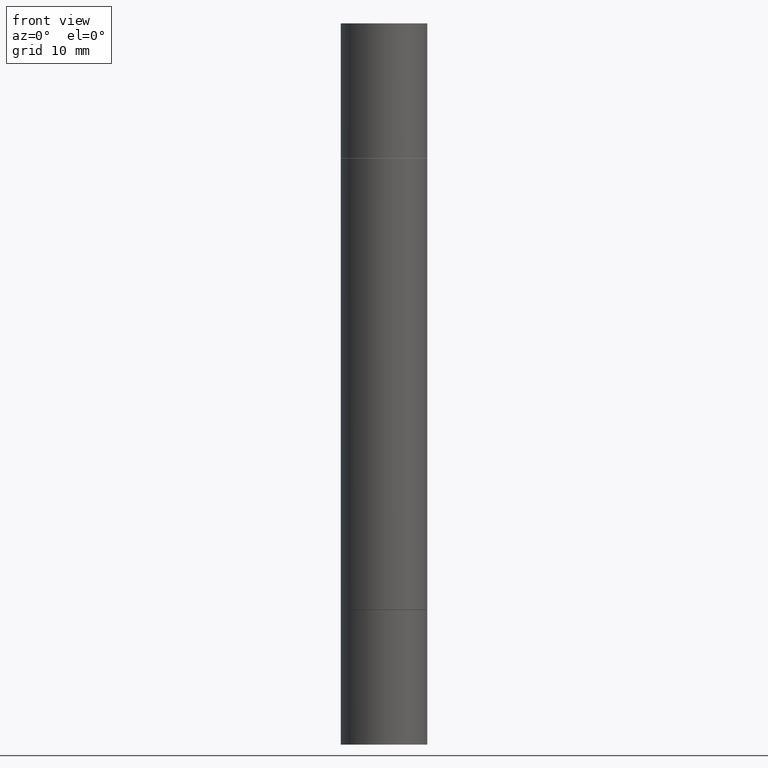
[diagram: clean part render]
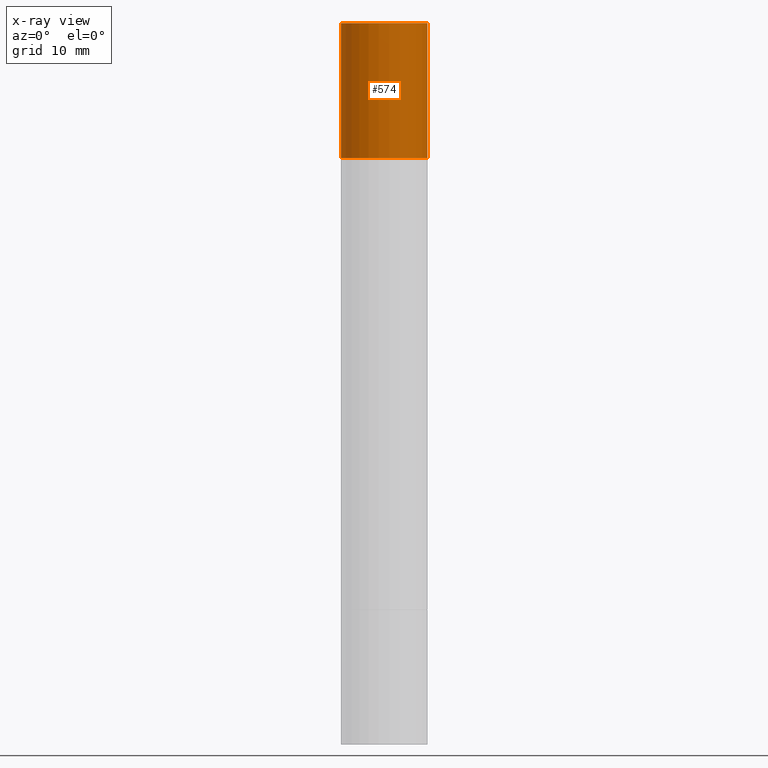
[diagram: x-ray — body ghosted, one internal face saturated and labeled with its STEP entity id]
A machine part, front view, then the same camera in x-ray: the body is ghosted and one INTERNAL B-rep face — a face not visible from any outside direction — is saturated and labeled: STEP entity #574.
In plain terms, the highlighted cylindrical surface (partial cylindrical patch) has radius 4.4996 mm, axis along (-0, -0, -1).
Its self-contained STEP definition (entity closure, byte-faithful):
#11 = CARTESIAN_POINT ( 'NONE',  ( -0.1771500000000000019, -9.096389231977797770E-15, -2.952799999999998981 ) ) ;
#21 = LINE ( 'NONE', #657, #92 ) ;
#38 = VERTEX_POINT ( 'NONE', #596 ) ;
#41 = EDGE_CURVE ( 'NONE', #407, #420, #21, .T. ) ;
#57 = DIRECTION ( 'NONE',  ( -2.445468806185136877E-29, -3.492890411551753071E-15, -1.000000000000000000 ) ) ;
#64 = AXIS2_PLACEMENT_3D ( 'NONE', #666, #186, #244 ) ;
#72 = DIRECTION ( 'NONE',  ( 2.445468806185136597E-29, 3.492890411551752677E-15, 1.000000000000000000 ) ) ;
#75 = VECTOR ( 'NONE', #57, 39.37007874015748143 ) ;
#92 = VECTOR ( 'NONE', #488, 39.37007874015748143 ) ;
#94 = AXIS2_PLACEMENT_3D ( 'NONE', #176, #72, #384 ) ;
#107 = LINE ( 'NONE', #11, #75 ) ;
#138 = CIRCLE ( 'NONE', #64, 0.1771500000000000019 ) ;
#150 = ORIENTED_EDGE ( 'NONE', *, *, #41, .F. ) ;
#162 = ORIENTED_EDGE ( 'NONE', *, *, #232, .F. ) ;
#176 = CARTESIAN_POINT ( 'NONE',  ( 5.873037884934223228E-29, -1.923200839900336120E-15, -0.5511999999999995792 ) ) ;
#186 = DIRECTION ( 'NONE',  ( 2.445468806185136597E-29, 3.492890411551752677E-15, 1.000000000000000000 ) ) ;
#213 = ORIENTED_EDGE ( 'NONE', *, *, #272, .T. ) ;
#232 = EDGE_CURVE ( 'NONE', #616, #407, #138, .T. ) ;
#244 = DIRECTION ( 'NONE',  ( 1.000000000000000000, -6.982962677686266711E-15, 0.000000000000000000 ) ) ;
#272 = EDGE_CURVE ( 'NONE', #616, #38, #107, .T. ) ;
#275 = DIRECTION ( 'NONE',  ( -2.445468806185136597E-29, -3.492890411551752677E-15, -1.000000000000000000 ) ) ;
#278 = AXIS2_PLACEMENT_3D ( 'NONE', #540, #275, #486 ) ;
#316 = CARTESIAN_POINT ( 'NONE',  ( 0.1771500000000000019, -1.234951483405132701E-15, 5.463695987328526437E-16 ) ) ;
#317 = ORIENTED_EDGE ( 'NONE', *, *, #569, .T. ) ;
#320 = CIRCLE ( 'NONE', #94, 0.1771500000000000019 ) ;
#351 = EDGE_LOOP ( 'NONE', ( #162, #213, #317, #150 ) ) ;
#362 = CARTESIAN_POINT ( 'NONE',  ( -0.1771500000000000019, 2.547769778285537851E-16, 5.463695987328559963E-16 ) ) ;
#384 = DIRECTION ( 'NONE',  ( 1.000000000000000000, -6.982962677686266711E-15, 0.000000000000000000 ) ) ;
#407 = VERTEX_POINT ( 'NONE', #316 ) ;
#420 = VERTEX_POINT ( 'NONE', #585 ) ;
#486 = DIRECTION ( 'NONE',  ( 1.000000000000000000, -6.982962677686272233E-15, 0.000000000000000000 ) ) ;
#488 = DIRECTION ( 'NONE',  ( -2.445468806185136877E-29, -3.492890411551753071E-15, -1.000000000000000000 ) ) ;
#537 = CYLINDRICAL_SURFACE ( 'NONE', #278, 0.1771500000000000019 ) ;
#540 = CARTESIAN_POINT ( 'NONE',  ( 0.000000000000000000, -1.031172645228302408E-14, -2.952799999999998981 ) ) ;
#569 = EDGE_CURVE ( 'NONE', #38, #420, #320, .T. ) ;
#574 = ADVANCED_FACE ( 'NONE', ( #595 ), #537, .T. ) ;
#585 = CARTESIAN_POINT ( 'NONE',  ( 0.1771500000000000019, -3.160232678252458120E-15, -0.5511999999999995792 ) ) ;
#595 = FACE_OUTER_BOUND ( 'NONE', #351, .T. ) ;
#596 = CARTESIAN_POINT ( 'NONE',  ( -0.1771500000000000019, 2.547769778285537851E-16, -0.5511999999999995792 ) ) ;
#616 = VERTEX_POINT ( 'NONE', #362 ) ;
#657 = CARTESIAN_POINT ( 'NONE',  ( 0.1771500000000000019, -1.154875829063514805E-14, -2.952799999999998981 ) ) ;
#666 = CARTESIAN_POINT ( 'NONE',  ( 7.220980290903470182E-29, 2.080354946989631982E-18, 5.463695987328526437E-16 ) ) ;